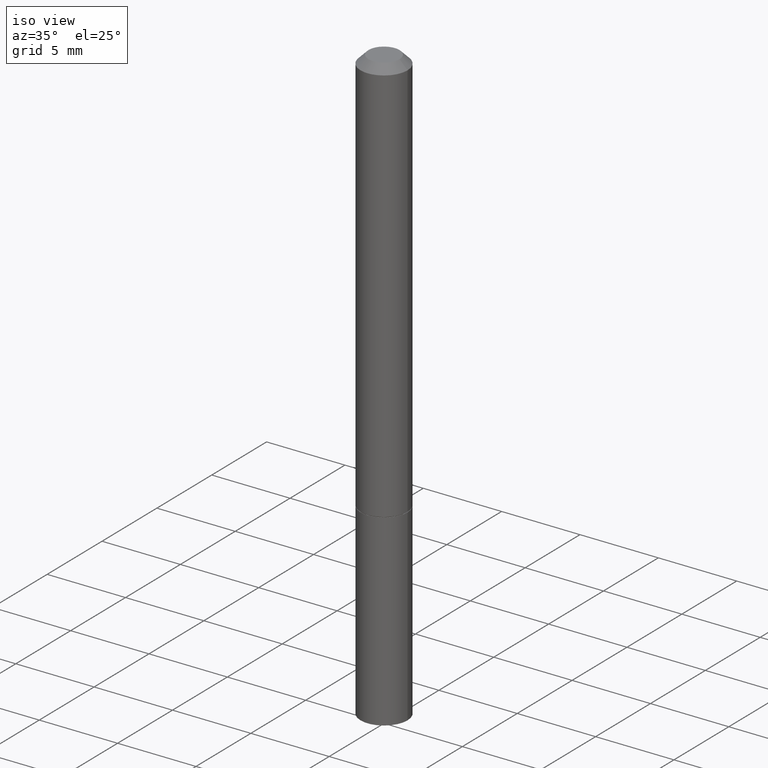
[diagram: clean part render]
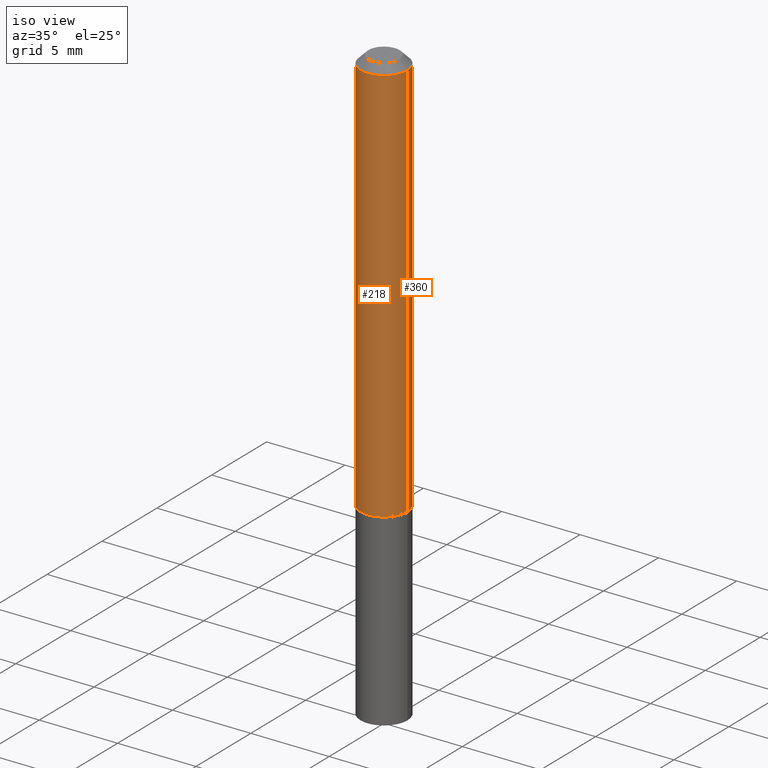
[diagram: same view with one multi-face feature highlighted, each face labeled with its STEP entity id]
A machine part, iso view. The highlighted faces form ONE feature: a constant-radius fillet chain: 2 tangent blend faces with common blend radius 1.4999 mm. The faces share edges in the B-rep.
Their STEP definitions:
[1] entity #360 (Cylinder):
#7 = EDGE_CURVE ( 'NONE', #59, #209, #348, .T. ) ;
#23 = FACE_OUTER_BOUND ( 'NONE', #31, .T. ) ;
#31 = EDGE_LOOP ( 'NONE', ( #316, #112, #35, #111 ) ) ;
#35 = ORIENTED_EDGE ( 'NONE', *, *, #274, .F. ) ;
#46 = CARTESIAN_POINT ( 'NONE',  ( 0.05904999999999981097, -4.749420335452707859E-16, -0.02000000000000007674 ) ) ;
#59 = VERTEX_POINT ( 'NONE', #184 ) ;
#67 = VERTEX_POINT ( 'NONE', #46 ) ;
#70 = CIRCLE ( 'NONE', #263, 0.05904999999999981097 ) ;
#73 = DIRECTION ( 'NONE',  ( 1.000000000000000000, -6.982962677686265922E-15, 0.000000000000000000 ) ) ;
#89 = CARTESIAN_POINT ( 'NONE',  ( -0.05904999999999988036, 4.195754854663383097E-16, -2.904631170795515936E-30 ) ) ;
#90 = CARTESIAN_POINT ( 'NONE',  ( 4.890937612370292426E-31, -6.982962677686317493E-17, -0.02000000000000007674 ) ) ;
#95 = LINE ( 'NONE', #295, #276 ) ;
#100 = DIRECTION ( 'NONE',  ( -2.445468806185136877E-29, 3.491481338843145188E-15, 1.000000000000000000 ) ) ;
#110 = EDGE_CURVE ( 'NONE', #311, #67, #95, .T. ) ;
#111 = ORIENTED_EDGE ( 'NONE', *, *, #110, .F. ) ;
#112 = ORIENTED_EDGE ( 'NONE', *, *, #7, .T. ) ;
#139 = CYLINDRICAL_SURFACE ( 'NONE', #285, 0.05904999999999988036 ) ;
#141 = VECTOR ( 'NONE', #149, 39.37007874015748143 ) ;
#149 = DIRECTION ( 'NONE',  ( -2.445468806185136877E-29, 3.491481338843145188E-15, 1.000000000000000000 ) ) ;
#184 = CARTESIAN_POINT ( 'NONE',  ( -0.05904999999999994975, -1.400708310539532881E-15, -1.022699999999999720 ) ) ;
#192 = CARTESIAN_POINT ( 'NONE',  ( 0.05904999999999994975, -3.983081911352257948E-15, -1.022699999999999720 ) ) ;
#209 = VERTEX_POINT ( 'NONE', #273 ) ;
#229 = AXIS2_PLACEMENT_3D ( 'NONE', #331, #277, #361 ) ;
#232 = DIRECTION ( 'NONE',  ( 1.000000000000000000, -6.982962677686266711E-15, 4.876176775795935232E-29 ) ) ;
#246 = EDGE_CURVE ( 'NONE', #311, #59, #335, .T. ) ;
#249 = DIRECTION ( 'NONE',  ( -2.445468806185136597E-29, 3.491481338843145583E-15, 1.000000000000000000 ) ) ;
#263 = AXIS2_PLACEMENT_3D ( 'NONE', #90, #249, #73 ) ;
#273 = CARTESIAN_POINT ( 'NONE',  ( -0.05904999999999981097, 3.425143193405095019E-16, -0.02000000000000007674 ) ) ;
#274 = EDGE_CURVE ( 'NONE', #67, #209, #70, .T. ) ;
#276 = VECTOR ( 'NONE', #100, 39.37007874015748143 ) ;
#277 = DIRECTION ( 'NONE',  ( -2.445468806185136597E-29, 3.491481338843145583E-15, 1.000000000000000000 ) ) ;
#285 = AXIS2_PLACEMENT_3D ( 'NONE', #287, #317, #232 ) ;
#287 = CARTESIAN_POINT ( 'NONE',  ( 0.000000000000000000, 0.000000000000000000, 0.000000000000000000 ) ) ;
#295 = CARTESIAN_POINT ( 'NONE',  ( 0.05904999999999988036, -4.123439461173731945E-16, 2.879382386107493914E-30 ) ) ;
#311 = VERTEX_POINT ( 'NONE', #192 ) ;
#316 = ORIENTED_EDGE ( 'NONE', *, *, #246, .T. ) ;
#317 = DIRECTION ( 'NONE',  ( -2.445468806185136597E-29, 3.491481338843145583E-15, 1.000000000000000000 ) ) ;
#331 = CARTESIAN_POINT ( 'NONE',  ( 2.500980948085538461E-29, -3.570737965234883817E-15, -1.022699999999999720 ) ) ;
#335 = CIRCLE ( 'NONE', #229, 0.05904999999999994975 ) ;
#348 = LINE ( 'NONE', #89, #141 ) ;
#360 = ADVANCED_FACE ( 'NONE', ( #23 ), #139, .T. ) ;
#361 = DIRECTION ( 'NONE',  ( 1.000000000000000000, -6.982962677686270655E-15, 0.000000000000000000 ) ) ;
[2] entity #218 (Cylinder):
#1 = ORIENTED_EDGE ( 'NONE', *, *, #110, .T. ) ;
#7 = EDGE_CURVE ( 'NONE', #59, #209, #348, .T. ) ;
#11 = CARTESIAN_POINT ( 'NONE',  ( 2.500980948085538461E-29, -3.570737965234883817E-15, -1.022699999999999720 ) ) ;
#12 = AXIS2_PLACEMENT_3D ( 'NONE', #323, #349, #212 ) ;
#14 = DIRECTION ( 'NONE',  ( 1.000000000000000000, -6.982962677686270655E-15, 0.000000000000000000 ) ) ;
#18 = FACE_OUTER_BOUND ( 'NONE', #281, .T. ) ;
#46 = CARTESIAN_POINT ( 'NONE',  ( 0.05904999999999981097, -4.749420335452707859E-16, -0.02000000000000007674 ) ) ;
#49 = CARTESIAN_POINT ( 'NONE',  ( 0.000000000000000000, 0.000000000000000000, 0.000000000000000000 ) ) ;
#59 = VERTEX_POINT ( 'NONE', #184 ) ;
#67 = VERTEX_POINT ( 'NONE', #46 ) ;
#81 = ORIENTED_EDGE ( 'NONE', *, *, #153, .F. ) ;
#89 = CARTESIAN_POINT ( 'NONE',  ( -0.05904999999999988036, 4.195754854663383097E-16, -2.904631170795515936E-30 ) ) ;
#95 = LINE ( 'NONE', #295, #276 ) ;
#100 = DIRECTION ( 'NONE',  ( -2.445468806185136877E-29, 3.491481338843145188E-15, 1.000000000000000000 ) ) ;
#110 = EDGE_CURVE ( 'NONE', #311, #67, #95, .T. ) ;
#126 = DIRECTION ( 'NONE',  ( -2.445468806185136597E-29, 3.491481338843145583E-15, 1.000000000000000000 ) ) ;
#127 = AXIS2_PLACEMENT_3D ( 'NONE', #11, #126, #14 ) ;
#141 = VECTOR ( 'NONE', #149, 39.37007874015748143 ) ;
#149 = DIRECTION ( 'NONE',  ( -2.445468806185136877E-29, 3.491481338843145188E-15, 1.000000000000000000 ) ) ;
#153 = EDGE_CURVE ( 'NONE', #209, #67, #173, .T. ) ;
#159 = DIRECTION ( 'NONE',  ( -2.445468806185136597E-29, 3.491481338843145583E-15, 1.000000000000000000 ) ) ;
#164 = CIRCLE ( 'NONE', #127, 0.05904999999999994975 ) ;
#173 = CIRCLE ( 'NONE', #12, 0.05904999999999981097 ) ;
#184 = CARTESIAN_POINT ( 'NONE',  ( -0.05904999999999994975, -1.400708310539532881E-15, -1.022699999999999720 ) ) ;
#192 = CARTESIAN_POINT ( 'NONE',  ( 0.05904999999999994975, -3.983081911352257948E-15, -1.022699999999999720 ) ) ;
#209 = VERTEX_POINT ( 'NONE', #273 ) ;
#212 = DIRECTION ( 'NONE',  ( 1.000000000000000000, -6.982962677686265922E-15, 0.000000000000000000 ) ) ;
#218 = ADVANCED_FACE ( 'NONE', ( #18 ), #239, .T. ) ;
#219 = DIRECTION ( 'NONE',  ( 1.000000000000000000, -6.982962677686266711E-15, 4.876176775795935232E-29 ) ) ;
#225 = EDGE_CURVE ( 'NONE', #59, #311, #164, .T. ) ;
#239 = CYLINDRICAL_SURFACE ( 'NONE', #320, 0.05904999999999988036 ) ;
#273 = CARTESIAN_POINT ( 'NONE',  ( -0.05904999999999981097, 3.425143193405095019E-16, -0.02000000000000007674 ) ) ;
#276 = VECTOR ( 'NONE', #100, 39.37007874015748143 ) ;
#278 = ORIENTED_EDGE ( 'NONE', *, *, #7, .F. ) ;
#281 = EDGE_LOOP ( 'NONE', ( #278, #301, #1, #81 ) ) ;
#295 = CARTESIAN_POINT ( 'NONE',  ( 0.05904999999999988036, -4.123439461173731945E-16, 2.879382386107493914E-30 ) ) ;
#301 = ORIENTED_EDGE ( 'NONE', *, *, #225, .T. ) ;
#311 = VERTEX_POINT ( 'NONE', #192 ) ;
#320 = AXIS2_PLACEMENT_3D ( 'NONE', #49, #159, #219 ) ;
#323 = CARTESIAN_POINT ( 'NONE',  ( 4.890937612370292426E-31, -6.982962677686317493E-17, -0.02000000000000007674 ) ) ;
#348 = LINE ( 'NONE', #89, #141 ) ;
#349 = DIRECTION ( 'NONE',  ( -2.445468806185136597E-29, 3.491481338843145583E-15, 1.000000000000000000 ) ) ;